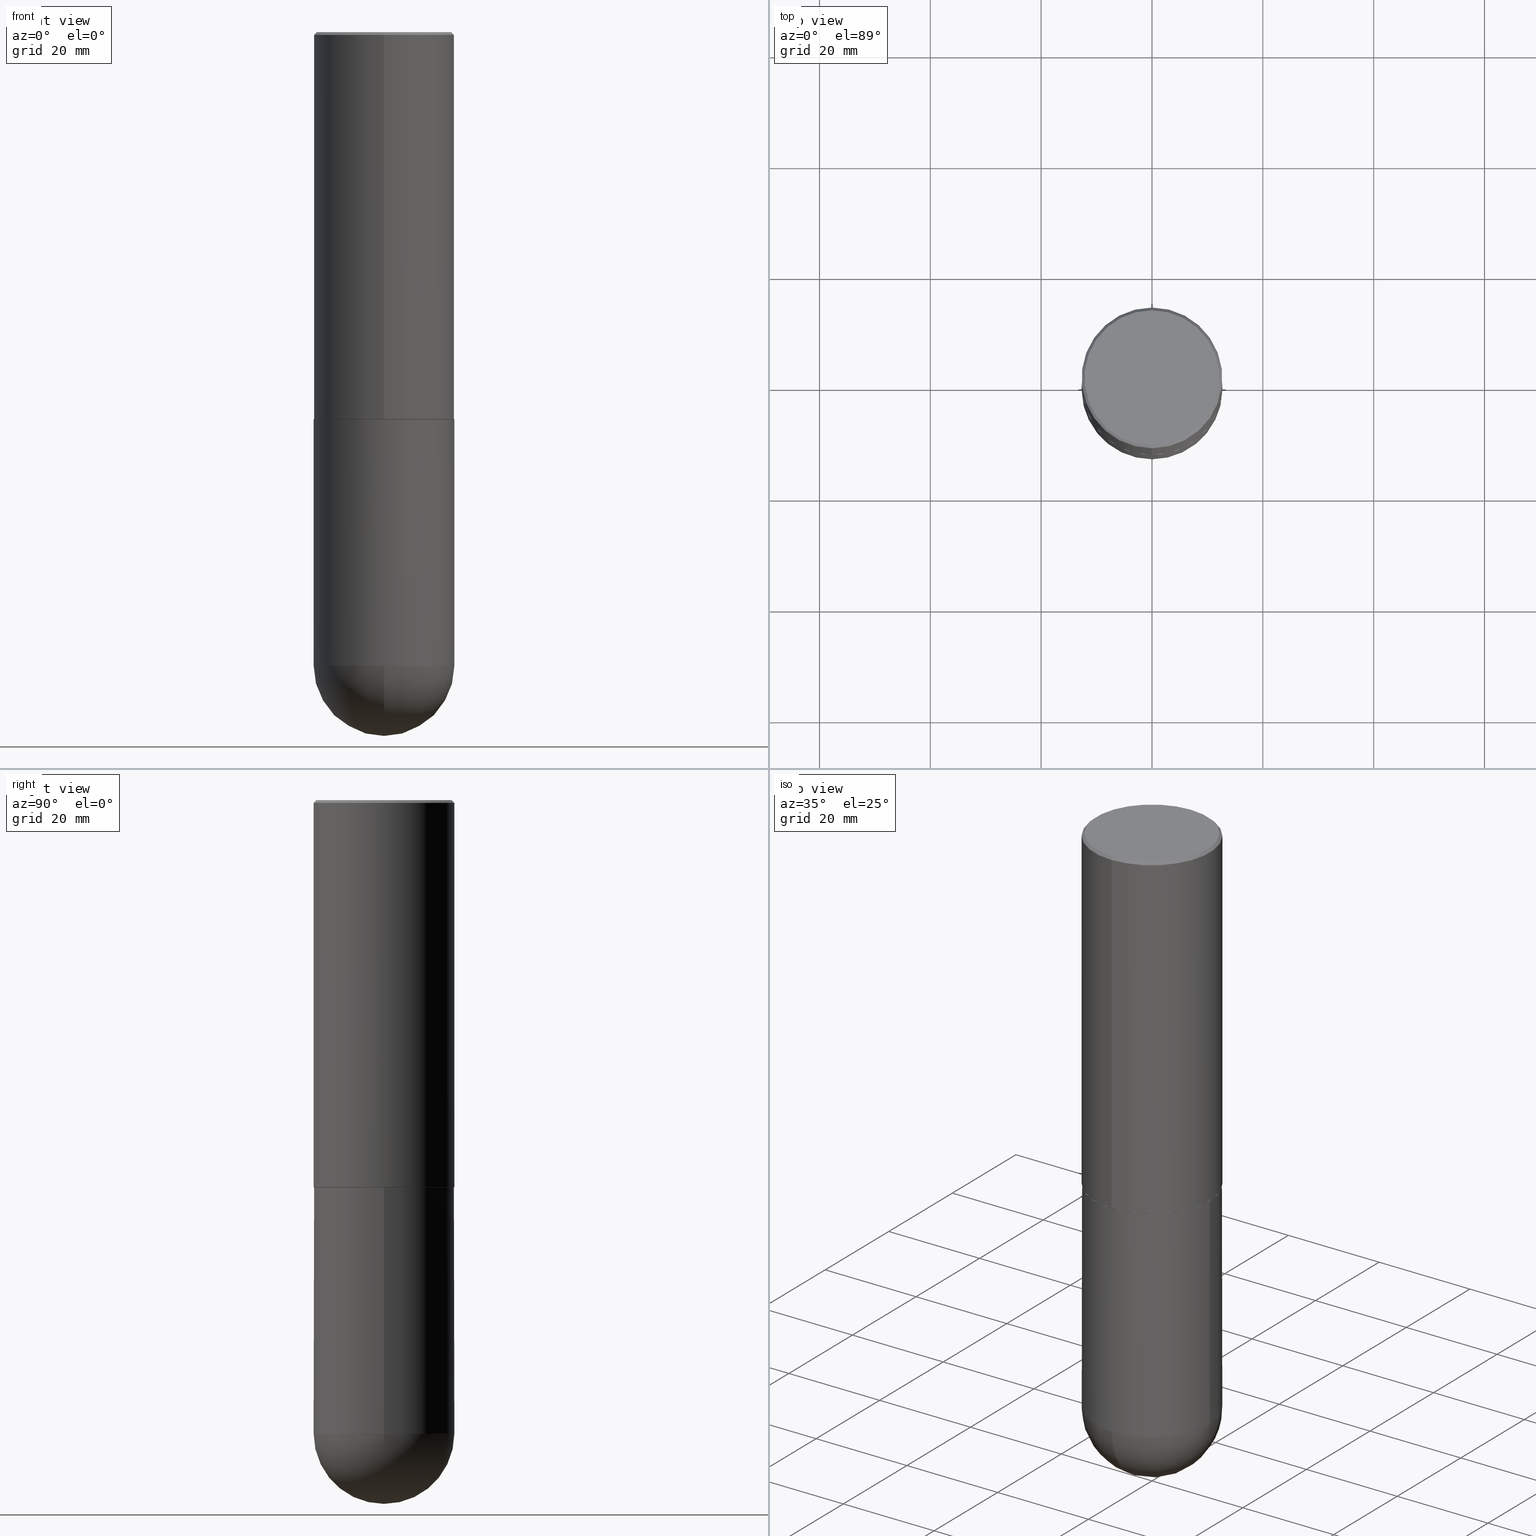
[diagram: canonical four-view strip — front | top / right | iso, engineering-drawing reading convention]
A machine part, canonical four-view strip (front | top / right | iso — engineering-drawing reading convention). The complete STEP part file that produces these views, byte-faithful:
ISO-10303-21;
HEADER;
FILE_DESCRIPTION (( 'STEP AP203' ),
    '1' );
FILE_NAME ('70468.STEP',
    '2024-04-10T12:33:58',
    ( '' ),
    ( '' ),
    'SwSTEP 2.0',
    'SolidWorks 2023',
    '' );
FILE_SCHEMA (( 'CONFIG_CONTROL_DESIGN' ));
ENDSEC;

DATA;
#1 = ORIENTED_EDGE ( 'NONE', *, *, #255, .F. ) ;
#2 = DIRECTION ( 'NONE',  ( 2.443377711191267396E-29, -3.494475905892102173E-15, -1.000000000000000000 ) ) ;
#3 = AXIS2_PLACEMENT_3D ( 'NONE', #283, #379, #123 ) ;
#4 = AXIS2_PLACEMENT_3D ( 'NONE', #24, #58, #249 ) ;
#5 = DIRECTION ( 'NONE',  ( 2.438088387897960049E-29, -3.491481338843145188E-15, -1.000000000000000000 ) ) ;
#6 = EDGE_CURVE ( 'NONE', #122, #208, #295, .T. ) ;
#7 = DIRECTION ( 'NONE',  ( 4.937700262164542520E-15, 0.7071067811865443531, -0.7071067811865506814 ) ) ;
#8 = COORDINATED_UNIVERSAL_TIME_OFFSET ( 5, 0, .BEHIND. ) ;
#9 = DIRECTION ( 'NONE',  ( 1.000000000000000000, -6.982962677686266711E-15, 4.876176775795935793E-29 ) ) ;
#10 = DIRECTION ( 'NONE',  ( -2.443377711191267396E-29, 3.494475905892102173E-15, 1.000000000000000000 ) ) ;
#11 = CIRCLE ( 'NONE', #188, 0.5000000000000001110 ) ;
#12 = CARTESIAN_POINT ( 'NONE',  ( -3.484498376165379499E-15, -0.4990000000000096025, -2.749999999999997780 ) ) ;
#13 = CARTESIAN_POINT ( 'NONE',  ( 6.719288705775983097E-29, -9.609808741203277230E-15, -2.749999999999999556 ) ) ;
#14 = APPROVAL ( #114, 'UNSPECIFIED' ) ;
#15 = AXIS2_PLACEMENT_3D ( 'NONE', #334, #223, #304 ) ;
#16 = ORIENTED_EDGE ( 'NONE', *, *, #115, .F. ) ;
#17 = FACE_OUTER_BOUND ( 'NONE', #343, .T. ) ;
#18 = CC_DESIGN_DATE_AND_TIME_ASSIGNMENT ( #237, #404, ( #342 ) ) ;
#19 = COORDINATED_UNIVERSAL_TIME_OFFSET ( 5, 0, .BEHIND. ) ;
#20 = ORIENTED_EDGE ( 'NONE', *, *, #193, .F. ) ;
#21 = ORIENTED_EDGE ( 'NONE', *, *, #146, .F. ) ;
#22 = PERSON_AND_ORGANIZATION ( #202, #310 ) ;
#23 = ORIENTED_EDGE ( 'NONE', *, *, #181, .T. ) ;
#24 = CARTESIAN_POINT ( 'NONE',  ( 1.100460962783311693E-28, -1.571166602479415690E-14, -4.500000000000000888 ) ) ;
#25 = AXIS2_PLACEMENT_3D ( 'NONE', #13, #259, #277 ) ;
#26 = UNCERTAINTY_MEASURE_WITH_UNIT (LENGTH_MEASURE( 1.000000000000000082E-05 ), #396, 'distance_accuracy_value', 'NONE');
#27 = ORIENTED_EDGE ( 'NONE', *, *, #408, .T. ) ;
#28 = FACE_OUTER_BOUND ( 'NONE', #338, .T. ) ;
#29 = DATE_AND_TIME ( #189, #168 ) ;
#30 = CARTESIAN_POINT ( 'NONE',  ( -3.491481338843134933E-15, -0.5000000000000002220, 1.747237952946052073E-15 ) ) ;
#31 = AXIS2_PLACEMENT_3D ( 'NONE', #38, #66, #383 ) ;
#32 = VECTOR ( 'NONE', #263, 39.37007874015748143 ) ;
#33 = CC_DESIGN_APPROVAL ( #85, ( #356 ) ) ;
#34 = DIRECTION ( 'NONE',  ( 5.024295867790978808E-15, 0.7071067811869604647, 0.7071067811861345698 ) ) ;
#35 = APPROVAL_ROLE ( '' ) ;
#36 = DIRECTION ( 'NONE',  ( 1.000000000000000000, -6.982962677686266711E-15, 4.876176775795935793E-29 ) ) ;
#37 = EDGE_CURVE ( 'NONE', #208, #198, #321, .T. ) ;
#38 = CARTESIAN_POINT ( 'NONE',  ( 6.716845328064793866E-29, -9.606314265297387659E-15, -2.749000000000000110 ) ) ;
#39 = DIRECTION ( 'NONE',  ( -6.982962677686266711E-15, -1.000000000000000000, 3.494475905892102568E-15 ) ) ;
#40 = FACE_OUTER_BOUND ( 'NONE', #405, .T. ) ;
#41 =( NAMED_UNIT ( * ) PLANE_ANGLE_UNIT ( ) SI_UNIT ( $, .RADIAN. ) );
#42 = DATE_AND_TIME ( #226, #336 ) ;
#43 = ORIENTED_EDGE ( 'NONE', *, *, #346, .T. ) ;
#44 = EDGE_CURVE ( 'NONE', #306, #170, #219, .T. ) ;
#45 = AXIS2_PLACEMENT_3D ( 'NONE', #307, #2, #109 ) ;
#46 = CARTESIAN_POINT ( 'NONE',  ( 1.100460962783311693E-28, -1.571166602479415690E-14, -4.500000000000000888 ) ) ;
#47 = DIRECTION ( 'NONE',  ( 1.000000000000000000, -6.982962677686270655E-15, 0.000000000000000000 ) ) ;
#48 = EDGE_LOOP ( 'NONE', ( #182, #236, #148, #261 ) ) ;
#49 = LENGTH_MEASURE_WITH_UNIT ( LENGTH_MEASURE( 0.02539999999999999897 ), #365 );
#50 = EDGE_CURVE ( 'NONE', #238, #201, #110, .T. ) ;
#51 = ORIENTED_EDGE ( 'NONE', *, *, #50, .F. ) ;
#52 = AXIS2_PLACEMENT_3D ( 'NONE', #355, #252, #9 ) ;
#53 = ORIENTED_EDGE ( 'NONE', *, *, #390, .T. ) ;
#54 = ADVANCED_FACE ( 'NONE', ( #28 ), #316, .T. ) ;
#55 = APPROVAL_DATE_TIME ( #207, #14 ) ;
#56 = DIRECTION ( 'NONE',  ( -2.443377711191267396E-29, 3.494475905892102173E-15, 1.000000000000000000 ) ) ;
#57 = ORIENTED_EDGE ( 'NONE', *, *, #337, .T. ) ;
#58 = DIRECTION ( 'NONE',  ( -2.445468806185136597E-29, 3.491481338843145583E-15, 1.000000000000000000 ) ) ;
#59 = CIRCLE ( 'NONE', #120, 0.5000000000000002220 ) ;
#60 = ORIENTED_EDGE ( 'NONE', *, *, #372, .T. ) ;
#61 = PRODUCT_DEFINITION_SHAPE ( 'NONE', 'NONE',  #342 ) ;
#62 = ADVANCED_FACE ( 'NONE', ( #176 ), #145, .T. ) ;
#63 = FACE_OUTER_BOUND ( 'NONE', #74, .T. ) ;
#64 = CARTESIAN_POINT ( 'NONE',  ( 0.5000000000000000000, -1.614810119214954068E-14, -4.500000000000000888 ) ) ;
#65 = AXIS2_PLACEMENT_3D ( 'NONE', #246, #153, #285 ) ;
#66 = DIRECTION ( 'NONE',  ( -2.443377711191267396E-29, 3.494475905892102173E-15, 1.000000000000000000 ) ) ;
#67 = CARTESIAN_POINT ( 'NONE',  ( 3.552713678800502507E-15, 0.5000000000000002220, -1.747237952946052073E-15 ) ) ;
#68 = DIRECTION ( 'NONE',  ( 1.000000000000000000, -6.982962677686265922E-15, 4.883557194083112340E-29 ) ) ;
#69 = APPROVAL_DATE_TIME ( #392, #85 ) ;
#70 = AXIS2_PLACEMENT_3D ( 'NONE', #46, #180, #118 ) ;
#71 = ORIENTED_EDGE ( 'NONE', *, *, #250, .T. ) ;
#72 = CARTESIAN_POINT ( 'NONE',  ( 0.5000000000000000000, -3.491481338843133355E-15, 2.438088387897967896E-29 ) ) ;
#73 = EDGE_CURVE ( 'NONE', #105, #311, #224, .T. ) ;
#74 = EDGE_LOOP ( 'NONE', ( #269, #71, #137, #76, #149 ) ) ;
#75 = CIRCLE ( 'NONE', #70, 0.5000000000000000000 ) ;
#76 = ORIENTED_EDGE ( 'NONE', *, *, #291, .F. ) ;
#77 = DIRECTION ( 'NONE',  ( -2.443377711191267116E-29, 3.494475905892102173E-15, 1.000000000000000000 ) ) ;
#78 = DIMENSIONAL_EXPONENTS ( 1.000000000000000000, 0.000000000000000000, 0.000000000000000000, 0.000000000000000000, 0.000000000000000000, 0.000000000000000000, 0.000000000000000000 ) ;
#79 = ORIENTED_EDGE ( 'NONE', *, *, #146, .T. ) ;
#80 = EDGE_CURVE ( 'NONE', #201, #311, #323, .T. ) ;
#81 = EDGE_LOOP ( 'NONE', ( #345, #318, #297, #312 ) ) ;
#82 = CIRCLE ( 'NONE', #301, 0.5000000000000001110 ) ;
#83 = ORIENTED_EDGE ( 'NONE', *, *, #250, .F. ) ;
#84 = DIRECTION ( 'NONE',  ( 1.000000000000000000, -6.982962677686266711E-15, 0.000000000000000000 ) ) ;
#85 = APPROVAL ( #325, 'UNSPECIFIED' ) ;
#86 = PERSON_AND_ORGANIZATION_ROLE ( 'creator' ) ;
#87 = DESIGN_CONTEXT ( 'detailed design', #281, 'design' ) ;
#88 = CARTESIAN_POINT ( 'NONE',  ( 1.100460962783311693E-28, -1.571166602479415690E-14, -4.500000000000000888 ) ) ;
#89 = ORIENTED_EDGE ( 'NONE', *, *, #44, .F. ) ;
#90 = EDGE_CURVE ( 'NONE', #311, #105, #155, .T. ) ;
#91 = CARTESIAN_POINT ( 'NONE',  ( 1.067348984991922956E-28, -1.618584839293420562E-14, -4.500000000000000000 ) ) ;
#92 = PRODUCT_RELATED_PRODUCT_CATEGORY ( 'detail', '', ( #125 ) ) ;
#93 = CARTESIAN_POINT ( 'NONE',  ( -3.484498376165379499E-15, -0.4990000000000096025, -2.749999999999997780 ) ) ;
#94 = FACE_OUTER_BOUND ( 'NONE', #341, .T. ) ;
#95 =( GEOMETRIC_REPRESENTATION_CONTEXT ( 3 ) GLOBAL_UNCERTAINTY_ASSIGNED_CONTEXT ( ( #26 ) ) GLOBAL_UNIT_ASSIGNED_CONTEXT ( ( #396, #41, #172 ) ) REPRESENTATION_CONTEXT ( 'NONE', 'WORKASPACE' ) );
#96 = LINE ( 'NONE', #67, #204 ) ;
#97 = CC_DESIGN_DATE_AND_TIME_ASSIGNMENT ( #29, #251, ( #356 ) ) ;
#98 = CARTESIAN_POINT ( 'NONE',  ( 3.552713678800536428E-15, 0.4999999999999908407, -2.749000000000001886 ) ) ;
#99 = DIRECTION ( 'NONE',  ( -6.982962677686265133E-15, -1.000000000000000000, 3.278217592397113101E-15 ) ) ;
#100 = APPROVAL_STATUS ( 'not_yet_approved' ) ;
#101 = ADVANCED_FACE ( 'NONE', ( #94 ), #215, .T. ) ;
#102 = LOCAL_TIME ( 8, 33, 58.00000000000000000, #19 ) ;
#103 = APPROVAL_ROLE ( '' ) ;
#104 = CC_DESIGN_SECURITY_CLASSIFICATION ( #356, ( #241 ) ) ;
#105 = VERTEX_POINT ( 'NONE', #248 ) ;
#106 = VERTEX_POINT ( 'NONE', #64 ) ;
#107 = ORIENTED_EDGE ( 'NONE', *, *, #37, .T. ) ;
#108 = EDGE_CURVE ( 'NONE', #198, #242, #82, .T. ) ;
#109 = DIRECTION ( 'NONE',  ( 6.982962677686265922E-15, 1.000000000000000000, -3.491643216902135619E-15 ) ) ;
#110 = CIRCLE ( 'NONE', #3, 0.4989999999999999991 ) ;
#111 = CIRCLE ( 'NONE', #302, 0.5000000000000000000 ) ;
#112 = LOCAL_TIME ( 8, 33, 58.00000000000000000, #8 ) ;
#113 = ORIENTED_EDGE ( 'NONE', *, *, #255, .T. ) ;
#114 = APPROVAL_STATUS ( 'not_yet_approved' ) ;
#115 = EDGE_CURVE ( 'NONE', #105, #198, #190, .T. ) ;
#116 = CLOSED_SHELL ( 'NONE', ( #332, #378, #384, #54, #166, #270, #210, #308 ) ) ;
#117 = ORIENTED_EDGE ( 'NONE', *, *, #37, .F. ) ;
#118 = DIRECTION ( 'NONE',  ( 1.000000000000000000, -6.982962677686270655E-15, 0.000000000000000000 ) ) ;
#119 = CIRCLE ( 'NONE', #4, 0.5000000000000000000 ) ;
#120 = AXIS2_PLACEMENT_3D ( 'NONE', #387, #217, #351 ) ;
#121 = APPROVAL_PERSON_ORGANIZATION ( #216, #85, #35 ) ;
#122 = VERTEX_POINT ( 'NONE', #187 ) ;
#123 = DIRECTION ( 'NONE',  ( -6.982962677686265922E-15, -1.000000000000000000, 3.284787166730577015E-15 ) ) ;
#124 = ADVANCED_FACE ( 'NONE', ( #158 ), #162, .F. ) ;
#125 = PRODUCT ( '70468', '70468', '', ( #368 ) ) ;
#126 = DIRECTION ( 'NONE',  ( -4.937700262167413974E-15, -0.7071067811869555797, 0.7071067811861394548 ) ) ;
#127 = APPROVAL_PERSON_ORGANIZATION ( #22, #14, #174 ) ;
#128 = LINE ( 'NONE', #296, #175 ) ;
#129 = EDGE_CURVE ( 'NONE', #213, #306, #406, .T. ) ;
#130 = LINE ( 'NONE', #93, #394 ) ;
#131 = CARTESIAN_POINT ( 'NONE',  ( -0.5000000000000000000, -9.103906174505906393E-15, -4.500000000000000888 ) ) ;
#132 = CARTESIAN_POINT ( 'NONE',  ( -0.5000000000000000000, -9.103906174505901660E-15, -2.750000000000000000 ) ) ;
#133 = CONICAL_SURFACE ( 'NONE', #45, 0.5000000000000001110, 0.7853981633974472798 ) ;
#134 = SPHERICAL_SURFACE ( 'NONE', #363, 0.5000000000000002220 ) ;
#135 = DIRECTION ( 'NONE',  ( -2.445468806185136877E-29, 3.491481338843145188E-15, 1.000000000000000000 ) ) ;
#136 = CARTESIAN_POINT ( 'NONE',  ( -3.361644018908050450E-15, -0.4800000000000001488, 1.606221114680001624E-15 ) ) ;
#137 = ORIENTED_EDGE ( 'NONE', *, *, #346, .F. ) ;
#138 = VECTOR ( 'NONE', #294, 39.37007874015748143 ) ;
#139 = AXIS2_PLACEMENT_3D ( 'NONE', #194, #326, #36 ) ;
#140 = APPLICATION_PROTOCOL_DEFINITION ( 'international standard', 'config_control_design', 1994, #411 ) ;
#141 = ADVANCED_FACE ( 'NONE', ( #350 ), #134, .T. ) ;
#142 = MANIFOLD_SOLID_BREP ( 'Body-Move/Copy2[1]', #362 ) ;
#143 = CIRCLE ( 'NONE', #354, 0.5000000000000000000 ) ;
#144 = ORIENTED_EDGE ( 'NONE', *, *, #6, .T. ) ;
#145 = CYLINDRICAL_SURFACE ( 'NONE', #52, 0.5000000000000000000 ) ;
#146 = EDGE_CURVE ( 'NONE', #122, #242, #128, .T. ) ;
#147 = PERSON_AND_ORGANIZATION ( #202, #310 ) ;
#148 = ORIENTED_EDGE ( 'NONE', *, *, #151, .T. ) ;
#149 = ORIENTED_EDGE ( 'NONE', *, *, #361, .T. ) ;
#150 = CC_DESIGN_APPROVAL ( #265, ( #342 ) ) ;
#151 = EDGE_CURVE ( 'NONE', #238, #105, #130, .T. ) ;
#152 = ORIENTED_EDGE ( 'NONE', *, *, #361, .F. ) ;
#153 = DIRECTION ( 'NONE',  ( 2.443377711191267396E-29, -3.494475905892102173E-15, -1.000000000000000000 ) ) ;
#154 = DIRECTION ( 'NONE',  ( -6.982962677686266711E-15, -1.000000000000000000, 3.494475905892102568E-15 ) ) ;
#155 = CIRCLE ( 'NONE', #31, 0.5000000000000004441 ) ;
#156 = AXIS2_PLACEMENT_3D ( 'NONE', #402, #77, #222 ) ;
#157 = COORDINATED_UNIVERSAL_TIME_OFFSET ( 5, 0, .BEHIND. ) ;
#158 = FACE_OUTER_BOUND ( 'NONE', #371, .T. ) ;
#159 = DIRECTION ( 'NONE',  ( -6.982962677686265922E-15, -1.000000000000000000, 3.491643216902135619E-15 ) ) ;
#160 = DIRECTION ( 'NONE',  ( -2.443377711191267396E-29, 3.494475905892102173E-15, 1.000000000000000000 ) ) ;
#161 = CARTESIAN_POINT ( 'NONE',  ( 6.719288705775983097E-29, -9.609808741203277230E-15, -2.749999999999999556 ) ) ;
#162 = PLANE ( 'NONE',  #278 ) ;
#163 = ADVANCED_FACE ( 'NONE', ( #63 ), #253, .T. ) ;
#164 = DIRECTION ( 'NONE',  ( 6.982962677686265922E-15, 1.000000000000000000, -3.494475905892102173E-15 ) ) ;
#165 = ORIENTED_EDGE ( 'NONE', *, *, #129, .T. ) ;
#166 = ADVANCED_FACE ( 'NONE', ( #389 ), #328, .T. ) ;
#167 = AXIS2_PLACEMENT_3D ( 'NONE', #185, #322, #154 ) ;
#168 = LOCAL_TIME ( 8, 33, 58.00000000000000000, #157 ) ;
#169 = CARTESIAN_POINT ( 'NONE',  ( 6.725039217009124520E-29, -9.601573681818649859E-15, -2.750000000000000000 ) ) ;
#170 = VERTEX_POINT ( 'NONE', #131 ) ;
#171 = CARTESIAN_POINT ( 'NONE',  ( 3.549160965121767873E-15, 0.4989999999999903402, -2.750000000000000888 ) ) ;
#172 =( NAMED_UNIT ( * ) SI_UNIT ( $, .STERADIAN. ) SOLID_ANGLE_UNIT ( ) );
#173 = VECTOR ( 'NONE', #377, 39.37007874015748143 ) ;
#174 = APPROVAL_ROLE ( '' ) ;
#175 = VECTOR ( 'NONE', #7, 39.37007874015748143 ) ;
#176 = FACE_OUTER_BOUND ( 'NONE', #177, .T. ) ;
#177 = EDGE_LOOP ( 'NONE', ( #83, #27, #57, #229, #280 ) ) ;
#178 = PERSON_AND_ORGANIZATION ( #202, #310 ) ;
#179 = DIRECTION ( 'NONE',  ( -6.982962677686265922E-15, -1.000000000000000000, 3.494475905892102173E-15 ) ) ;
#180 = DIRECTION ( 'NONE',  ( -2.445468806185136597E-29, 3.491481338843145583E-15, 1.000000000000000000 ) ) ;
#181 = EDGE_CURVE ( 'NONE', #213, #300, #59, .T. ) ;
#182 = ORIENTED_EDGE ( 'NONE', *, *, #80, .F. ) ;
#183 = DIRECTION ( 'NONE',  ( -2.445468806185136597E-29, 3.491481338843145583E-15, 1.000000000000000000 ) ) ;
#184 = ORIENTED_EDGE ( 'NONE', *, *, #181, .F. ) ;
#185 = CARTESIAN_POINT ( 'NONE',  ( 0.000000000000000000, 0.000000000000000000, 0.000000000000000000 ) ) ;
#186 = DIRECTION ( 'NONE',  ( -2.443377711191267396E-29, 3.494475905892102173E-15, 1.000000000000000000 ) ) ;
#187 = CARTESIAN_POINT ( 'NONE',  ( 3.421651712066271635E-15, 0.4800000000000001488, -1.748475754976417733E-15 ) ) ;
#188 = AXIS2_PLACEMENT_3D ( 'NONE', #232, #268, #260 ) ;
#189 = CALENDAR_DATE ( 2024, 10, 4 ) ;
#190 = LINE ( 'NONE', #30, #138 ) ;
#191 = CARTESIAN_POINT ( 'NONE',  ( 3.545608251442966186E-15, 0.4989999999999903402, -2.750000000000000888 ) ) ;
#192 = FACE_OUTER_BOUND ( 'NONE', #81, .T. ) ;
#193 = EDGE_CURVE ( 'NONE', #311, #242, #96, .T. ) ;
#194 = CARTESIAN_POINT ( 'NONE',  ( 0.000000000000000000, 0.000000000000000000, 0.000000000000000000 ) ) ;
#195 = PERSON_AND_ORGANIZATION ( #202, #310 ) ;
#196 = DIRECTION ( 'NONE',  ( -2.443377711191267396E-29, 3.494475905892102173E-15, 1.000000000000000000 ) ) ;
#197 = EDGE_LOOP ( 'NONE', ( #203, #205, #367, #16 ) ) ;
#198 = VERTEX_POINT ( 'NONE', #398 ) ;
#199 = AXIS2_PLACEMENT_3D ( 'NONE', #256, #388, #164 ) ;
#200 = CALENDAR_DATE ( 2024, 10, 4 ) ;
#201 = VERTEX_POINT ( 'NONE', #171 ) ;
#202 = PERSON ( 'UNSPECIFIED', 'UNSPECIFIED', 'UNSPECIFIED', ('UNSPECIFIED'), ('UNSPECIFIED'), ('UNSPECIFIED') ) ;
#203 = ORIENTED_EDGE ( 'NONE', *, *, #73, .T. ) ;
#204 = VECTOR ( 'NONE', #327, 39.37007874015748143 ) ;
#205 = ORIENTED_EDGE ( 'NONE', *, *, #193, .T. ) ;
#206 = DIRECTION ( 'NONE',  ( -6.982962677686265922E-15, -1.000000000000000000, 3.284787166730577015E-15 ) ) ;
#207 = DATE_AND_TIME ( #375, #102 ) ;
#208 = VERTEX_POINT ( 'NONE', #136 ) ;
#209 = ADVANCED_BREP_SHAPE_REPRESENTATION ( '70468', ( #142, #284, #15 ), #95 ) ;
#210 = ADVANCED_FACE ( 'NONE', ( #17 ), #271, .F. ) ;
#211 = DIRECTION ( 'NONE',  ( -2.445468806185136597E-29, 3.491481338843145583E-15, 1.000000000000000000 ) ) ;
#212 = APPROVAL_DATE_TIME ( #42, #265 ) ;
#213 = VERTEX_POINT ( 'NONE', #366 ) ;
#214 = CARTESIAN_POINT ( 'NONE',  ( 0.5000000000000000000, -1.309305502066178321E-14, -2.750000000000000000 ) ) ;
#215 = SPHERICAL_SURFACE ( 'NONE', #239, 0.5000000000000002220 ) ;
#216 = PERSON_AND_ORGANIZATION ( #202, #310 ) ;
#217 = DIRECTION ( 'NONE',  ( -1.000000000000000000, 7.105427357601001070E-15, -4.926315508542082329E-29 ) ) ;
#218 = CARTESIAN_POINT ( 'NONE',  ( 1.067348984991922956E-28, -1.618584839293420562E-14, -4.500000000000000000 ) ) ;
#219 = CIRCLE ( 'NONE', #262, 0.5000000000000000000 ) ;
#220 = DIRECTION ( 'NONE',  ( 6.982962677686266711E-15, 1.000000000000000000, 0.000000000000000000 ) ) ;
#221 = CARTESIAN_POINT ( 'NONE',  ( 3.491481338843200408E-15, 0.4999999999999903411, -2.750000000000001332 ) ) ;
#222 = DIRECTION ( 'NONE',  ( -6.982962677686265922E-15, -1.000000000000000000, 3.494475905892102173E-15 ) ) ;
#223 = DIRECTION ( 'NONE',  ( 0.000000000000000000, 0.000000000000000000, 1.000000000000000000 ) ) ;
#224 = CIRCLE ( 'NONE', #287, 0.5000000000000004441 ) ;
#225 = AXIS2_PLACEMENT_3D ( 'NONE', #299, #227, #47 ) ;
#226 = CALENDAR_DATE ( 2024, 10, 4 ) ;
#227 = DIRECTION ( 'NONE',  ( -2.445468806185136597E-29, 3.491481338843145583E-15, 1.000000000000000000 ) ) ;
#228 = CC_DESIGN_PERSON_AND_ORGANIZATION_ASSIGNMENT ( #344, #410, ( #241 ) ) ;
#229 = ORIENTED_EDGE ( 'NONE', *, *, #291, .T. ) ;
#230 = FACE_OUTER_BOUND ( 'NONE', #48, .T. ) ;
#231 = ORIENTED_EDGE ( 'NONE', *, *, #108, .T. ) ;
#232 = CARTESIAN_POINT ( 'NONE',  ( 4.886755422382561102E-31, -6.988951811784240684E-17, -0.02000000000000010797 ) ) ;
#233 = CIRCLE ( 'NONE', #407, 0.4800000000000001488 ) ;
#234 = APPLICATION_PROTOCOL_DEFINITION ( 'international standard', 'config_control_design', 1994, #281 ) ;
#235 = CC_DESIGN_PERSON_AND_ORGANIZATION_ASSIGNMENT ( #147, #313, ( #342 ) ) ;
#236 = ORIENTED_EDGE ( 'NONE', *, *, #352, .T. ) ;
#237 = DATE_AND_TIME ( #245, #386 ) ;
#238 = VERTEX_POINT ( 'NONE', #12 ) ;
#239 = AXIS2_PLACEMENT_3D ( 'NONE', #218, #257, #290 ) ;
#240 = AXIS2_PLACEMENT_3D ( 'NONE', #314, #56, #179 ) ;
#241 = PRODUCT_DEFINITION_FORMATION_WITH_SPECIFIED_SOURCE ( 'ANY', '', #125, .NOT_KNOWN. ) ;
#242 = VERTEX_POINT ( 'NONE', #400 ) ;
#243 = CARTESIAN_POINT ( 'NONE',  ( 6.725039217009124520E-29, -9.601573681818649859E-15, -2.750000000000000000 ) ) ;
#244 = CARTESIAN_POINT ( 'NONE',  ( -3.430248998885765781E-15, -0.5000000000000002220, -0.01999999999999835937 ) ) ;
#245 = CALENDAR_DATE ( 2024, 10, 4 ) ;
#246 = CARTESIAN_POINT ( 'NONE',  ( 4.886755422382561102E-31, -6.988951811784240684E-17, -0.02000000000000010797 ) ) ;
#247 = DIRECTION ( 'NONE',  ( -2.443377711191267396E-29, 3.494475905892102173E-15, 1.000000000000000000 ) ) ;
#248 = CARTESIAN_POINT ( 'NONE',  ( -3.491481338843069063E-15, -0.5000000000000099920, -2.748999999999998334 ) ) ;
#249 = DIRECTION ( 'NONE',  ( 1.000000000000000000, -6.982962677686270655E-15, 0.000000000000000000 ) ) ;
#250 = EDGE_CURVE ( 'NONE', #170, #276, #305, .T. ) ;
#251 = DATE_TIME_ROLE ( 'classification_date' ) ;
#252 = DIRECTION ( 'NONE',  ( -2.445468806185136597E-29, 3.491481338843145583E-15, 1.000000000000000000 ) ) ;
#253 = CYLINDRICAL_SURFACE ( 'NONE', #139, 0.5000000000000000000 ) ;
#254 = DIRECTION ( 'NONE',  ( -1.000000000000000000, 6.982962677686265922E-15, -4.883557194083113462E-29 ) ) ;
#255 = EDGE_CURVE ( 'NONE', #208, #122, #233, .T. ) ;
#256 = CARTESIAN_POINT ( 'NONE',  ( 3.351822085289408731E-15, 0.4800000000000001488, -1.712912094902313262E-15 ) ) ;
#257 = DIRECTION ( 'NONE',  ( -1.000000000000000000, 6.982962677686265922E-15, -4.883557194083113462E-29 ) ) ;
#258 = CARTESIAN_POINT ( 'NONE',  ( -3.552713678800393250E-15, -0.5000000000000160982, -4.499999999999999112 ) ) ;
#259 = DIRECTION ( 'NONE',  ( -2.443377711191267396E-29, 3.494475905892102173E-15, 1.000000000000000000 ) ) ;
#260 = DIRECTION ( 'NONE',  ( -6.982962677686265922E-15, -1.000000000000000000, 3.491643216902135619E-15 ) ) ;
#261 = ORIENTED_EDGE ( 'NONE', *, *, #90, .F. ) ;
#262 = AXIS2_PLACEMENT_3D ( 'NONE', #88, #211, #412 ) ;
#263 = DIRECTION ( 'NONE',  ( -2.445468806185136877E-29, 3.491481338843145188E-15, 1.000000000000000000 ) ) ;
#264 = AXIS2_PLACEMENT_3D ( 'NONE', #161, #196, #358 ) ;
#265 = APPROVAL ( #100, 'UNSPECIFIED' ) ;
#266 = CARTESIAN_POINT ( 'NONE',  ( 3.491481338843242218E-15, 0.4999999999999841238, -4.500000000000002665 ) ) ;
#267 = SHAPE_DEFINITION_REPRESENTATION ( #61, #209 ) ;
#268 = DIRECTION ( 'NONE',  ( -2.443377711191267396E-29, 3.494475905892102173E-15, 1.000000000000000000 ) ) ;
#269 = ORIENTED_EDGE ( 'NONE', *, *, #44, .T. ) ;
#270 = ADVANCED_FACE ( 'NONE', ( #230 ), #374, .T. ) ;
#271 = PLANE ( 'NONE',  #156 ) ;
#272 = APPROVAL_PERSON_ORGANIZATION ( #309, #265, #103 ) ;
#273 = ORIENTED_EDGE ( 'NONE', *, *, #115, .T. ) ;
#274 = ORIENTED_EDGE ( 'NONE', *, *, #6, .F. ) ;
#275 = COORDINATED_UNIVERSAL_TIME_OFFSET ( 5, 0, .BEHIND. ) ;
#276 = VERTEX_POINT ( 'NONE', #132 ) ;
#277 = DIRECTION ( 'NONE',  ( -6.982962677686265922E-15, -1.000000000000000000, 3.284787166730577015E-15 ) ) ;
#278 = AXIS2_PLACEMENT_3D ( 'NONE', #221, #5, #382 ) ;
#279 = AXIS2_PLACEMENT_3D ( 'NONE', #315, #247, #206 ) ;
#280 = ORIENTED_EDGE ( 'NONE', *, *, #372, .F. ) ;
#281 = APPLICATION_CONTEXT ( 'configuration controlled 3d designs of mechanical parts and assemblies' ) ;
#282 = SECURITY_CLASSIFICATION_LEVEL ( 'unclassified' ) ;
#283 = CARTESIAN_POINT ( 'NONE',  ( 6.719288705775983097E-29, -9.609808741203277230E-15, -2.749999999999999556 ) ) ;
#284 = MANIFOLD_SOLID_BREP ( 'Body-Move/Copy2[2]', #116 ) ;
#285 = DIRECTION ( 'NONE',  ( 6.982962677686265922E-15, 1.000000000000000000, -3.491643216902135619E-15 ) ) ;
#286 = FACE_OUTER_BOUND ( 'NONE', #369, .T. ) ;
#287 = AXIS2_PLACEMENT_3D ( 'NONE', #385, #324, #99 ) ;
#288 = CARTESIAN_POINT ( 'NONE',  ( 4.886755422382561102E-31, -6.988951811784240684E-17, -0.02000000000000010797 ) ) ;
#289 = CIRCLE ( 'NONE', #225, 0.5000000000000000000 ) ;
#290 = DIRECTION ( 'NONE',  ( 6.982962677686265922E-15, 1.000000000000000000, -3.278217592397114284E-15 ) ) ;
#291 = EDGE_CURVE ( 'NONE', #106, #364, #397, .T. ) ;
#292 = CARTESIAN_POINT ( 'NONE',  ( 0.000000000000000000, 0.000000000000000000, 0.000000000000000000 ) ) ;
#293 = CC_DESIGN_PERSON_AND_ORGANIZATION_ASSIGNMENT ( #353, #359, ( #356 ) ) ;
#294 = DIRECTION ( 'NONE',  ( -2.443377711191267116E-29, 3.494475905892102173E-15, 1.000000000000000000 ) ) ;
#295 = CIRCLE ( 'NONE', #240, 0.4800000000000001488 ) ;
#296 = CARTESIAN_POINT ( 'NONE',  ( 3.491481338843134539E-15, 0.5000000000000001110, -0.02000000000000185310 ) ) ;
#297 = ORIENTED_EDGE ( 'NONE', *, *, #73, .F. ) ;
#298 = CARTESIAN_POINT ( 'NONE',  ( -0.5000000000000000000, 3.552713678800500929E-15, -2.459467545127452891E-29 ) ) ;
#299 = CARTESIAN_POINT ( 'NONE',  ( 1.100460962783311693E-28, -1.571166602479415690E-14, -4.500000000000000888 ) ) ;
#300 = VERTEX_POINT ( 'NONE', #258 ) ;
#301 = AXIS2_PLACEMENT_3D ( 'NONE', #288, #160, #159 ) ;
#302 = AXIS2_PLACEMENT_3D ( 'NONE', #243, #380, #84 ) ;
#303 = VECTOR ( 'NONE', #135, 39.37007874015748143 ) ;
#304 = DIRECTION ( 'NONE',  ( 1.000000000000000000, 0.000000000000000000, 0.000000000000000000 ) ) ;
#305 = LINE ( 'NONE', #298, #32 ) ;
#306 = VERTEX_POINT ( 'NONE', #266 ) ;
#307 = CARTESIAN_POINT ( 'NONE',  ( 4.886755422382561102E-31, -6.988951811784240684E-17, -0.02000000000000010797 ) ) ;
#308 = ADVANCED_FACE ( 'NONE', ( #40 ), #391, .F. ) ;
#309 = PERSON_AND_ORGANIZATION ( #202, #310 ) ;
#310 = ORGANIZATION ( 'UNSPECIFIED', 'UNSPECIFIED', '' ) ;
#311 = VERTEX_POINT ( 'NONE', #98 ) ;
#312 = ORIENTED_EDGE ( 'NONE', *, *, #151, .F. ) ;
#313 = PERSON_AND_ORGANIZATION_ROLE ( 'creator' ) ;
#314 = CARTESIAN_POINT ( 'NONE',  ( 1.737909087068967574E-45, -2.485527065085864041E-31, -7.112732014820790665E-17 ) ) ;
#315 = CARTESIAN_POINT ( 'NONE',  ( 6.719288705775983097E-29, -9.609808741203277230E-15, -2.749999999999999556 ) ) ;
#316 = CONICAL_SURFACE ( 'NONE', #65, 0.5000000000000001110, 0.7853981633974472798 ) ;
#317 = AXIS2_PLACEMENT_3D ( 'NONE', #292, #186, #39 ) ;
#318 = ORIENTED_EDGE ( 'NONE', *, *, #80, .T. ) ;
#319 = FACE_OUTER_BOUND ( 'NONE', #197, .T. ) ;
#320 = CC_DESIGN_PERSON_AND_ORGANIZATION_ASSIGNMENT ( #195, #393, ( #125 ) ) ;
#321 = LINE ( 'NONE', #244, #173 ) ;
#322 = DIRECTION ( 'NONE',  ( -2.443377711191267396E-29, 3.494475905892102173E-15, 1.000000000000000000 ) ) ;
#323 = LINE ( 'NONE', #191, #339 ) ;
#324 = DIRECTION ( 'NONE',  ( -2.443377711191267396E-29, 3.494475905892102173E-15, 1.000000000000000000 ) ) ;
#325 = APPROVAL_STATUS ( 'not_yet_approved' ) ;
#326 = DIRECTION ( 'NONE',  ( -2.445468806185136597E-29, 3.491481338843145583E-15, 1.000000000000000000 ) ) ;
#327 = DIRECTION ( 'NONE',  ( -2.443377711191267116E-29, 3.494475905892102173E-15, 1.000000000000000000 ) ) ;
#328 = CYLINDRICAL_SURFACE ( 'NONE', #317, 0.5000000000000002220 ) ;
#329 = AXIS2_PLACEMENT_3D ( 'NONE', #91, #68, #220 ) ;
#330 = DIRECTION ( 'NONE',  ( -6.982962677686265922E-15, -1.000000000000000000, 3.494475905892102173E-15 ) ) ;
#331 = COORDINATED_UNIVERSAL_TIME_OFFSET ( 5, 0, .BEHIND. ) ;
#332 = ADVANCED_FACE ( 'NONE', ( #192 ), #381, .T. ) ;
#333 = CARTESIAN_POINT ( 'NONE',  ( 1.737909087068967574E-45, -2.485527065085864041E-31, -7.112732014820790665E-17 ) ) ;
#334 = CARTESIAN_POINT ( 'NONE',  ( 0.000000000000000000, 0.000000000000000000, 0.000000000000000000 ) ) ;
#335 = ORIENTED_EDGE ( 'NONE', *, *, #390, .F. ) ;
#336 = LOCAL_TIME ( 8, 33, 58.00000000000000000, #331 ) ;
#337 = EDGE_CURVE ( 'NONE', #300, #106, #75, .T. ) ;
#338 = EDGE_LOOP ( 'NONE', ( #117, #274, #79, #53 ) ) ;
#339 = VECTOR ( 'NONE', #34, 39.37007874015748143 ) ;
#340 = CC_DESIGN_APPROVAL ( #14, ( #241 ) ) ;
#341 = EDGE_LOOP ( 'NONE', ( #403, #23, #376, #89 ) ) ;
#342 = PRODUCT_DEFINITION ( 'UNKNOWN', '', #241, #87 ) ;
#343 = EDGE_LOOP ( 'NONE', ( #51, #409 ) ) ;
#344 = PERSON_AND_ORGANIZATION ( #202, #310 ) ;
#345 = ORIENTED_EDGE ( 'NONE', *, *, #50, .T. ) ;
#346 = EDGE_CURVE ( 'NONE', #364, #276, #111, .T. ) ;
#347 = ORIENTED_EDGE ( 'NONE', *, *, #337, .F. ) ;
#348 = CYLINDRICAL_SURFACE ( 'NONE', #167, 0.5000000000000002220 ) ;
#349 = CC_DESIGN_PERSON_AND_ORGANIZATION_ASSIGNMENT ( #178, #86, ( #241 ) ) ;
#350 = FACE_OUTER_BOUND ( 'NONE', #395, .T. ) ;
#351 = DIRECTION ( 'NONE',  ( -7.105427357601001859E-15, -1.000000000000000000, 0.000000000000000000 ) ) ;
#352 = EDGE_CURVE ( 'NONE', #201, #238, #401, .T. ) ;
#353 = PERSON_AND_ORGANIZATION ( #202, #310 ) ;
#354 = AXIS2_PLACEMENT_3D ( 'NONE', #169, #183, #399 ) ;
#355 = CARTESIAN_POINT ( 'NONE',  ( 0.000000000000000000, 0.000000000000000000, 0.000000000000000000 ) ) ;
#356 = SECURITY_CLASSIFICATION ( '', '', #282 ) ;
#357 = DIRECTION ( 'NONE',  ( 6.982962677686265922E-15, 1.000000000000000000, -3.278217592397114284E-15 ) ) ;
#358 = DIRECTION ( 'NONE',  ( -6.982962677686265922E-15, -1.000000000000000000, 3.284787166730577015E-15 ) ) ;
#359 = PERSON_AND_ORGANIZATION_ROLE ( 'classification_officer' ) ;
#360 = CARTESIAN_POINT ( 'NONE',  ( 1.067348984991922956E-28, -1.618584839293420562E-14, -4.500000000000000000 ) ) ;
#361 = EDGE_CURVE ( 'NONE', #106, #306, #119, .T. ) ;
#362 = CLOSED_SHELL ( 'NONE', ( #163, #101, #141, #124, #62 ) ) ;
#363 = AXIS2_PLACEMENT_3D ( 'NONE', #360, #254, #357 ) ;
#364 = VERTEX_POINT ( 'NONE', #214 ) ;
#365 =( LENGTH_UNIT ( ) NAMED_UNIT ( * ) SI_UNIT ( $, .METRE. ) );
#366 = CARTESIAN_POINT ( 'NONE',  ( 1.191760341024128201E-28, -1.790097289237709482E-14, -5.000000000000000000 ) ) ;
#367 = ORIENTED_EDGE ( 'NONE', *, *, #108, .F. ) ;
#368 = MECHANICAL_CONTEXT ( 'NONE', #411, 'mechanical' ) ;
#369 = EDGE_LOOP ( 'NONE', ( #1, #107, #231, #21 ) ) ;
#370 = EDGE_LOOP ( 'NONE', ( #20, #373, #273, #335 ) ) ;
#371 = EDGE_LOOP ( 'NONE', ( #43, #60 ) ) ;
#372 = EDGE_CURVE ( 'NONE', #276, #364, #143, .T. ) ;
#373 = ORIENTED_EDGE ( 'NONE', *, *, #90, .T. ) ;
#374 = CONICAL_SURFACE ( 'NONE', #264, 0.4989999999999999991, 0.7853981633980288146 ) ;
#375 = CALENDAR_DATE ( 2024, 10, 4 ) ;
#376 = ORIENTED_EDGE ( 'NONE', *, *, #408, .F. ) ;
#377 = DIRECTION ( 'NONE',  ( -4.851104656540958753E-15, -0.7071067811865492381, -0.7071067811865457964 ) ) ;
#378 = ADVANCED_FACE ( 'NONE', ( #319 ), #348, .T. ) ;
#379 = DIRECTION ( 'NONE',  ( -2.443377711191267396E-29, 3.494475905892102173E-15, 1.000000000000000000 ) ) ;
#380 = DIRECTION ( 'NONE',  ( -2.445468806185136597E-29, 3.491481338843145583E-15, 1.000000000000000000 ) ) ;
#381 = CONICAL_SURFACE ( 'NONE', #25, 0.4989999999999999991, 0.7853981633980288146 ) ;
#382 = DIRECTION ( 'NONE',  ( -1.000000000000000000, 6.982962677686265922E-15, -4.876176775795935793E-29 ) ) ;
#383 = DIRECTION ( 'NONE',  ( -6.982962677686265133E-15, -1.000000000000000000, 3.278217592397113101E-15 ) ) ;
#384 = ADVANCED_FACE ( 'NONE', ( #286 ), #133, .T. ) ;
#385 = CARTESIAN_POINT ( 'NONE',  ( 6.716845328064793866E-29, -9.606314265297387659E-15, -2.749000000000000110 ) ) ;
#386 = LOCAL_TIME ( 8, 33, 58.00000000000000000, #275 ) ;
#387 = CARTESIAN_POINT ( 'NONE',  ( 1.067348984991922956E-28, -1.618584839293420562E-14, -4.500000000000000000 ) ) ;
#388 = DIRECTION ( 'NONE',  ( 2.443377711191267116E-29, -3.494475905892102173E-15, -1.000000000000000000 ) ) ;
#389 = FACE_OUTER_BOUND ( 'NONE', #370, .T. ) ;
#390 = EDGE_CURVE ( 'NONE', #242, #198, #11, .T. ) ;
#391 = PLANE ( 'NONE',  #199 ) ;
#392 = DATE_AND_TIME ( #200, #112 ) ;
#393 = PERSON_AND_ORGANIZATION_ROLE ( 'design_owner' ) ;
#394 = VECTOR ( 'NONE', #126, 39.37007874015748143 ) ;
#395 = EDGE_LOOP ( 'NONE', ( #184, #165, #152, #347 ) ) ;
#396 =( CONVERSION_BASED_UNIT ( 'INCH', #49 ) LENGTH_UNIT ( ) NAMED_UNIT ( #78 ) );
#397 = LINE ( 'NONE', #72, #303 ) ;
#398 = CARTESIAN_POINT ( 'NONE',  ( -3.430248998885765781E-15, -0.5000000000000002220, -0.01999999999999835937 ) ) ;
#399 = DIRECTION ( 'NONE',  ( 1.000000000000000000, -6.982962677686266711E-15, 0.000000000000000000 ) ) ;
#400 = CARTESIAN_POINT ( 'NONE',  ( 3.491481338843134539E-15, 0.5000000000000001110, -0.02000000000000185310 ) ) ;
#401 = CIRCLE ( 'NONE', #279, 0.4989999999999999991 ) ;
#402 = CARTESIAN_POINT ( 'NONE',  ( 6.719288705775984218E-29, -9.609808741203280385E-15, -2.750000000000000000 ) ) ;
#403 = ORIENTED_EDGE ( 'NONE', *, *, #129, .F. ) ;
#404 = DATE_TIME_ROLE ( 'creation_date' ) ;
#405 = EDGE_LOOP ( 'NONE', ( #144, #113 ) ) ;
#406 = CIRCLE ( 'NONE', #329, 0.5000000000000002220 ) ;
#407 = AXIS2_PLACEMENT_3D ( 'NONE', #333, #10, #330 ) ;
#408 = EDGE_CURVE ( 'NONE', #170, #300, #289, .T. ) ;
#409 = ORIENTED_EDGE ( 'NONE', *, *, #352, .F. ) ;
#410 = PERSON_AND_ORGANIZATION_ROLE ( 'design_supplier' ) ;
#411 = APPLICATION_CONTEXT ( 'configuration controlled 3d designs of mechanical parts and assemblies' ) ;
#412 = DIRECTION ( 'NONE',  ( 1.000000000000000000, -6.982962677686270655E-15, 0.000000000000000000 ) ) ;
ENDSEC;
END-ISO-10303-21;
